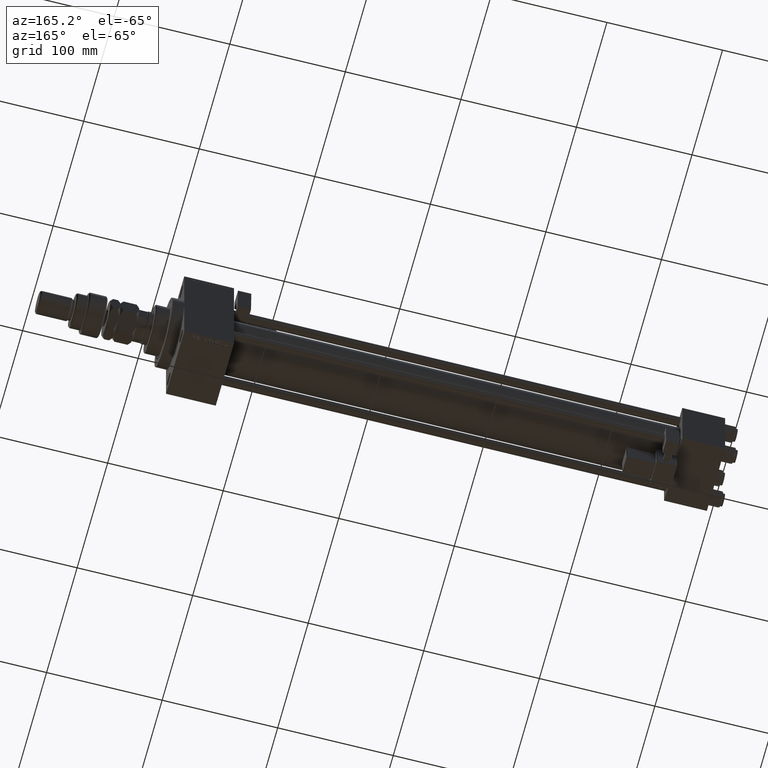
[diagram: clean part render]
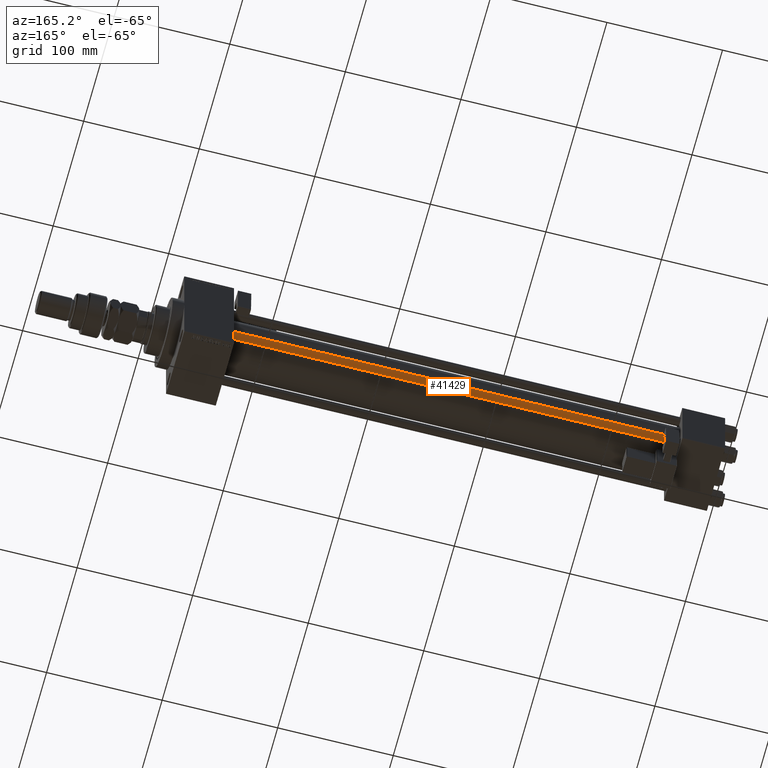
[diagram: same view with one face highlighted and labeled with its STEP entity id]
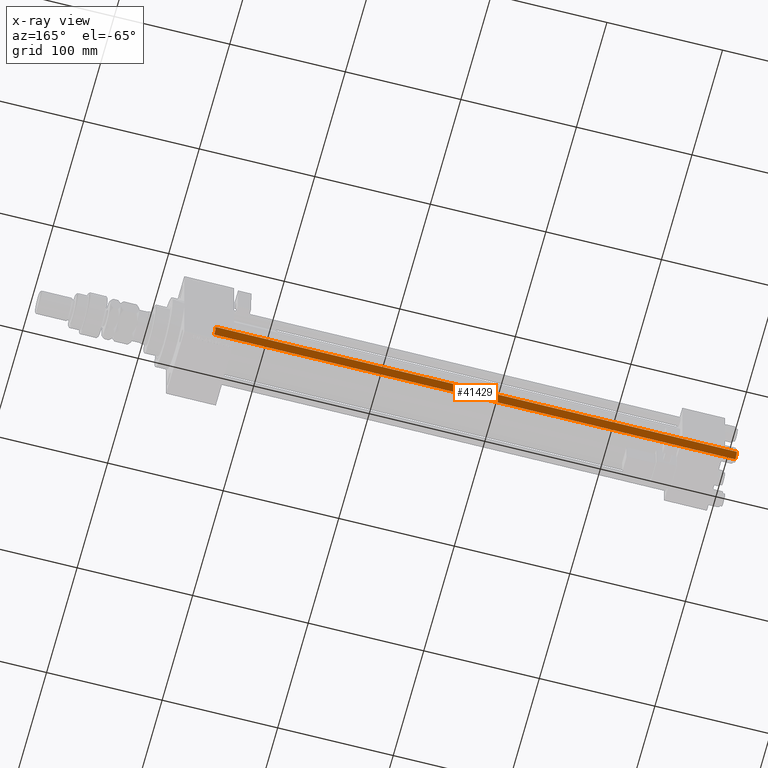
[diagram: x-ray of the same camera — body ghosted, the highlighted face saturated]
A machine part, auxiliary view. The second image highlights one B-rep face of the part: STEP entity #41429.
The next image is the same camera in x-ray: the body ghosted, the highlighted face saturated — about 0% of this face is hidden behind the body in this view.
In plain terms, the highlighted cylindrical surface (edge-blend (fillet) strip) has radius 4 mm, axis along (1, -0, 0).
Its self-contained STEP definition (entity closure, byte-faithful):
#4047 = ORIENTED_EDGE ( 'NONE', *, *, #43762, .T. ) ;
#4753 = FACE_OUTER_BOUND ( 'NONE', #48033, .T. ) ;
#5255 = CARTESIAN_POINT ( 'NONE',  ( 4.000000000000000000, 4.898587196589412829E-16, 451.5000000000000000 ) ) ;
#6906 = EDGE_CURVE ( 'NONE', #15321, #9880, #29288, .T. ) ;
#8033 = LINE ( 'NONE', #40736, #10257 ) ;
#8207 = CARTESIAN_POINT ( 'NONE',  ( 0.000000000000000000, 0.000000000000000000, 452.0000000000000000 ) ) ;
#9880 = VERTEX_POINT ( 'NONE', #27131 ) ;
#10257 = VECTOR ( 'NONE', #16559, 1000.000000000000000 ) ;
#10341 = VECTOR ( 'NONE', #45491, 1000.000000000000000 ) ;
#11858 = DIRECTION ( 'NONE',  ( -0.000000000000000000, -0.000000000000000000, 1.000000000000000000 ) ) ;
#13330 = CARTESIAN_POINT ( 'NONE',  ( 4.000000000000000000, 4.898587196589412829E-16, 452.0000000000000000 ) ) ;
#13661 = CARTESIAN_POINT ( 'NONE',  ( 0.000000000000000000, 0.000000000000000000, 451.5000000000000000 ) ) ;
#14707 = CIRCLE ( 'NONE', #35089, 4.000000000000000000 ) ;
#15321 = VERTEX_POINT ( 'NONE', #5255 ) ;
#15847 = DIRECTION ( 'NONE',  ( 1.000000000000000000, 0.000000000000000000, 0.000000000000000000 ) ) ;
#16559 = DIRECTION ( 'NONE',  ( -0.000000000000000000, -0.000000000000000000, -1.000000000000000000 ) ) ;
#17276 = VERTEX_POINT ( 'NONE', #40977 ) ;
#17812 = VERTEX_POINT ( 'NONE', #29470 ) ;
#22585 = ORIENTED_EDGE ( 'NONE', *, *, #38901, .T. ) ;
#23188 = EDGE_CURVE ( 'NONE', #17276, #17812, #8033, .T. ) ;
#24706 = DIRECTION ( 'NONE',  ( -0.000000000000000000, -0.000000000000000000, -1.000000000000000000 ) ) ;
#25714 = CARTESIAN_POINT ( 'NONE',  ( 0.000000000000000000, 0.000000000000000000, 0.5000000000000004441 ) ) ;
#26783 = CIRCLE ( 'NONE', #49677, 4.000000000000000000 ) ;
#26827 = ORIENTED_EDGE ( 'NONE', *, *, #23188, .F. ) ;
#27131 = CARTESIAN_POINT ( 'NONE',  ( 4.000000000000000000, 4.898587196589412829E-16, 0.5000000000000004441 ) ) ;
#29288 = LINE ( 'NONE', #13330, #10341 ) ;
#29470 = CARTESIAN_POINT ( 'NONE',  ( -4.000000000000000000, 0.000000000000000000, 0.5000000000000004441 ) ) ;
#33963 = ORIENTED_EDGE ( 'NONE', *, *, #6906, .T. ) ;
#35089 = AXIS2_PLACEMENT_3D ( 'NONE', #13661, #50595, #46612 ) ;
#36405 = CYLINDRICAL_SURFACE ( 'NONE', #52109, 4.000000000000000000 ) ;
#38901 = EDGE_CURVE ( 'NONE', #17276, #15321, #14707, .T. ) ;
#40736 = CARTESIAN_POINT ( 'NONE',  ( -4.000000000000000000, 0.000000000000000000, 452.0000000000000000 ) ) ;
#40977 = CARTESIAN_POINT ( 'NONE',  ( -4.000000000000000000, 0.000000000000000000, 451.5000000000000000 ) ) ;
#41429 = ADVANCED_FACE ( 'NONE', ( #4753 ), #36405, .T. ) ;
#43762 = EDGE_CURVE ( 'NONE', #9880, #17812, #26783, .T. ) ;
#45491 = DIRECTION ( 'NONE',  ( -0.000000000000000000, -0.000000000000000000, -1.000000000000000000 ) ) ;
#46612 = DIRECTION ( 'NONE',  ( 1.000000000000000000, 0.000000000000000000, 0.000000000000000000 ) ) ;
#48033 = EDGE_LOOP ( 'NONE', ( #22585, #33963, #4047, #26827 ) ) ;
#49218 = DIRECTION ( 'NONE',  ( -1.000000000000000000, 0.000000000000000000, 0.000000000000000000 ) ) ;
#49677 = AXIS2_PLACEMENT_3D ( 'NONE', #25714, #11858, #15847 ) ;
#50595 = DIRECTION ( 'NONE',  ( 0.000000000000000000, 0.000000000000000000, -1.000000000000000000 ) ) ;
#52109 = AXIS2_PLACEMENT_3D ( 'NONE', #8207, #24706, #49218 ) ;